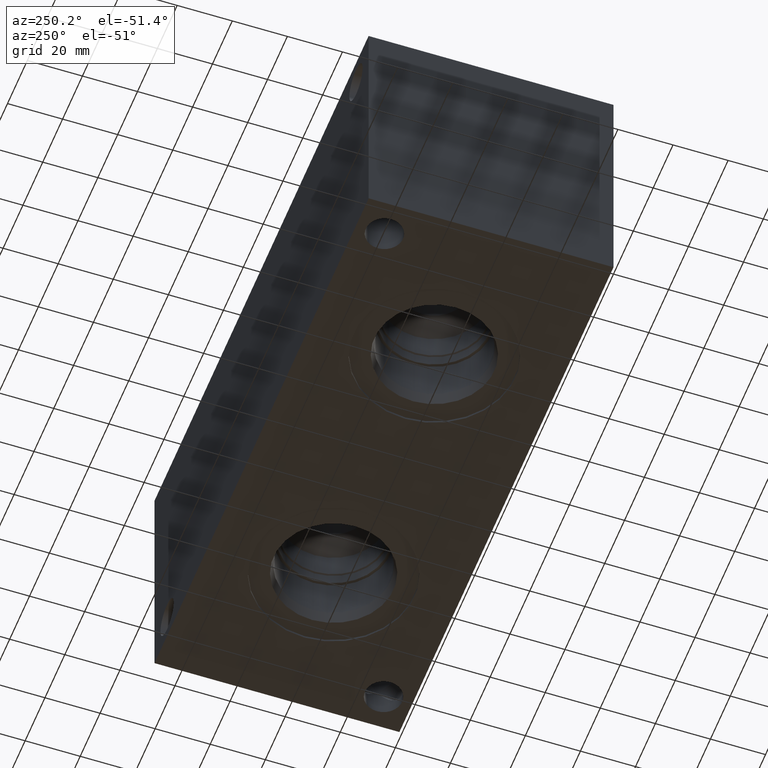
[diagram: clean part render]
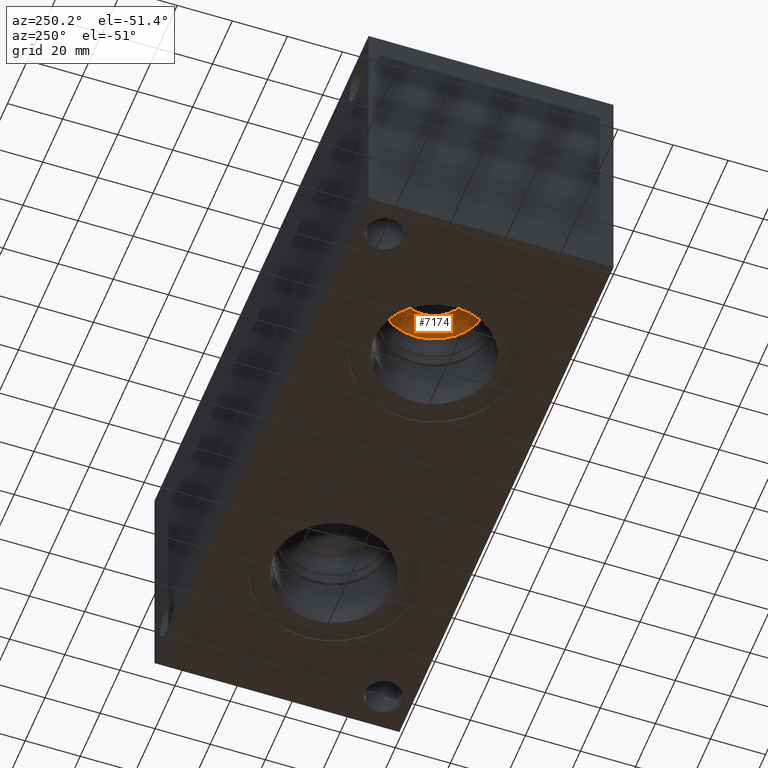
[diagram: same view with one face highlighted and labeled with its STEP entity id]
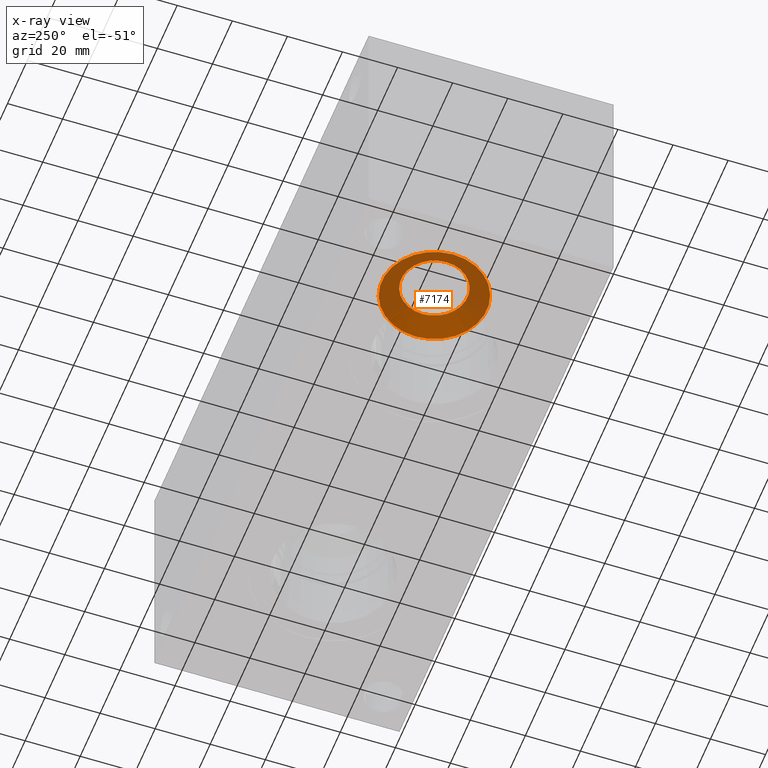
[diagram: x-ray of the same camera — body ghosted, the highlighted face saturated]
A machine part, auxiliary view. The second image highlights one B-rep face of the part: STEP entity #7174.
The next image is the same camera in x-ray: the body ghosted, the highlighted face saturated — about 60% of this face is hidden behind the body in this view.
In plain terms, the highlighted conical surface has half-angle 60 deg.
Its self-contained STEP definition (entity closure, byte-faithful):
#14=CONICAL_SURFACE('',#7473,9.525,1.0471975511966);
#82=CIRCLE('',#7474,19.05);
#83=CIRCLE('',#7475,12.0409831087152);
#84=CIRCLE('',#7476,19.05);
#836=FACE_OUTER_BOUND('',#1235,.T.);
#1235=EDGE_LOOP('',(#6093,#6094,#6095,#6096,#6097));
#1948=LINE('',#12180,#2639);
#2639=VECTOR('',#8714,9.525);
#3273=VERTEX_POINT('',#12176);
#3274=VERTEX_POINT('',#12177);
#3275=VERTEX_POINT('',#12179);
#4230=EDGE_CURVE('',#3273,#3274,#82,.T.);
#4231=EDGE_CURVE('',#3274,#3275,#1948,.T.);
#4232=EDGE_CURVE('',#3275,#3275,#83,.T.);
#4233=EDGE_CURVE('',#3274,#3273,#84,.T.);
#6093=ORIENTED_EDGE('',*,*,#4230,.T.);
#6094=ORIENTED_EDGE('',*,*,#4231,.T.);
#6095=ORIENTED_EDGE('',*,*,#4232,.F.);
#6096=ORIENTED_EDGE('',*,*,#4231,.F.);
#6097=ORIENTED_EDGE('',*,*,#4233,.T.);
#7174=ADVANCED_FACE('',(#836),#14,.F.);
#7473=AXIS2_PLACEMENT_3D('',#12175,#8710,#8711);
#7474=AXIS2_PLACEMENT_3D('',#12178,#8712,#8713);
#7475=AXIS2_PLACEMENT_3D('',#12181,#8715,#8716);
#7476=AXIS2_PLACEMENT_3D('',#12182,#8717,#8718);
#8710=DIRECTION('center_axis',(0.,0.,-1.));
#8711=DIRECTION('ref_axis',(1.,0.,0.));
#8712=DIRECTION('center_axis',(0.,0.,-1.));
#8713=DIRECTION('ref_axis',(1.,0.,0.));
#8714=DIRECTION('',(0.866025403784439,-1.06057523872491E-16,0.5));
#8715=DIRECTION('center_axis',(0.,0.,-1.));
#8716=DIRECTION('ref_axis',(1.,0.,0.));
#8717=DIRECTION('center_axis',(0.,0.,-1.));
#8718=DIRECTION('ref_axis',(1.,0.,0.));
#12175=CARTESIAN_POINT('Origin',(57.15,44.45,38.5062413140312));
#12176=CARTESIAN_POINT('',(76.2,44.45,33.00698));
#12177=CARTESIAN_POINT('',(38.1,44.45,33.00698));
#12178=CARTESIAN_POINT('Origin',(57.15,44.45,33.00698));
#12179=CARTESIAN_POINT('',(45.1090168912848,44.45,37.0536377889379));
#12180=CARTESIAN_POINT('',(47.625,44.45,38.5062413140312));
#12181=CARTESIAN_POINT('Origin',(57.15,44.45,37.0536377889379));
#12182=CARTESIAN_POINT('Origin',(57.15,44.45,33.00698));